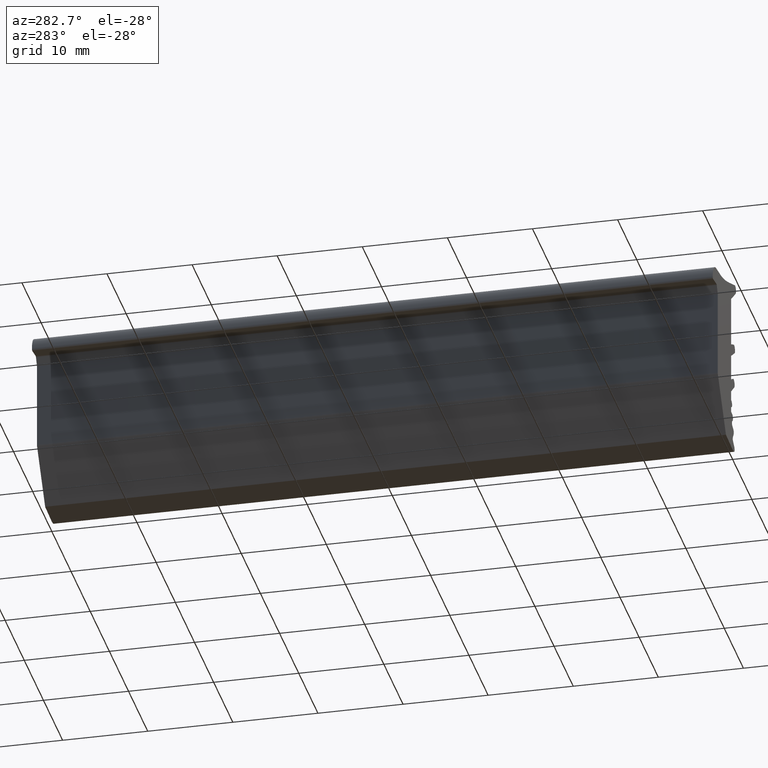
[diagram: clean part render]
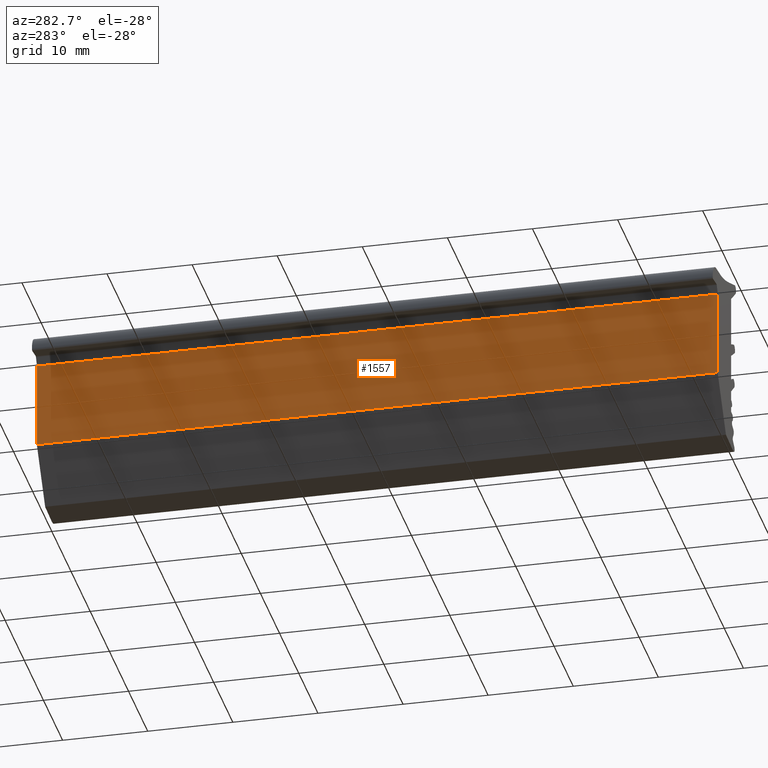
[diagram: same view with one face highlighted and labeled with its STEP entity id]
A machine part, auxiliary view. The second image highlights one B-rep face of the part: STEP entity #1557.
In plain terms, the highlighted planar face has unit normal (1, -0, 0).
Its self-contained STEP definition (entity closure, byte-faithful):
#68 = FACE_OUTER_BOUND ( 'NONE', #254, .T. ) ;
#229 = ORIENTED_EDGE ( 'NONE', *, *, #1974, .F. ) ;
#230 = ORIENTED_EDGE ( 'NONE', *, *, #1976, .F. ) ;
#232 = ORIENTED_EDGE ( 'NONE', *, *, #1986, .F. ) ;
#233 = ORIENTED_EDGE ( 'NONE', *, *, #2028, .F. ) ;
#254 = EDGE_LOOP ( 'NONE', ( #229, #230, #232, #233 ) ) ;
#414 = DIRECTION ( 'NONE',  ( -0.0000000000000000000, -1.000000000000000000, -0.0000000000000000000 ) ) ;
#415 = CARTESIAN_POINT ( 'NONE',  ( -7.773604013714980000, 80.00200000000001000, 16.17985906082330100 ) ) ;
#536 = DIRECTION ( 'NONE',  ( 0.0000000000000000000, 0.0000000000000000000, -1.000000000000000000 ) ) ;
#543 = CARTESIAN_POINT ( 'NONE',  ( -7.773604013714980000, 0.0000000000000000000, 11.08681303858249800 ) ) ;
#827 = DIRECTION ( 'NONE',  ( 0.0000000000000000000, 1.000000000000000000, 0.0000000000000000000 ) ) ;
#908 = DIRECTION ( 'NONE',  ( -0.0000000000000000000, -0.0000000000000000000, 1.000000000000000000 ) ) ;
#909 = CARTESIAN_POINT ( 'NONE',  ( -7.773604013714980000, 80.00000000000999000, 11.08681303858249800 ) ) ;
#947 = CARTESIAN_POINT ( 'NONE',  ( -7.773604013714980000, 80.00000000000999000, 5.993767016346730300 ) ) ;
#949 = CARTESIAN_POINT ( 'NONE',  ( -7.773604013713898200, 80.00000000000500200, 16.17985906082437400 ) ) ;
#952 = CARTESIAN_POINT ( 'NONE',  ( -7.773604013714980000, 80.00200000000001000, 5.993767016351730700 ) ) ;
#954 = CARTESIAN_POINT ( 'NONE',  ( -7.773604013714980000, 0.0000000000000000000, 5.993767016346730300 ) ) ;
#1073 = CARTESIAN_POINT ( 'NONE',  ( -7.773604013714980000, 80.00200000000001000, 11.08681303858249800 ) ) ;
#1161 = VERTEX_POINT ( 'NONE', #1211 ) ;
#1169 = VERTEX_POINT ( 'NONE', #949 ) ;
#1171 = VERTEX_POINT ( 'NONE', #947 ) ;
#1185 = VERTEX_POINT ( 'NONE', #954 ) ;
#1211 = CARTESIAN_POINT ( 'NONE',  ( -7.773604013713874200, 0.0000000000000000000, 16.17985906082433400 ) ) ;
#1327 = DIRECTION ( 'NONE',  ( 0.0000000000000000000, 0.0000000000000000000, -1.000000000000000000 ) ) ;
#1328 = DIRECTION ( 'NONE',  ( 1.000000000000000000, -0.0000000000000000000, 0.0000000000000000000 ) ) ;
#1340 = PLANE ( 'NONE',  #1911 ) ;
#1360 = VECTOR ( 'NONE', #536, 1000.000000000000000 ) ;
#1380 = LINE ( 'NONE', #543, #1360 ) ;
#1399 = LINE ( 'NONE', #415, #1554 ) ;
#1410 = VECTOR ( 'NONE', #827, 1000.000000000000000 ) ;
#1421 = LINE ( 'NONE', #952, #1410 ) ;
#1427 = VECTOR ( 'NONE', #908, 1000.000000000000000 ) ;
#1430 = LINE ( 'NONE', #909, #1427 ) ;
#1554 = VECTOR ( 'NONE', #414, 1000.000000000000000 ) ;
#1557 = ADVANCED_FACE ( 'NONE', ( #68 ), #1340, .F. ) ;
#1911 = AXIS2_PLACEMENT_3D ( 'NONE', #1073, #1328, #1327 ) ;
#1974 = EDGE_CURVE ( 'NONE', #1171, #1169, #1430, .T. ) ;
#1976 = EDGE_CURVE ( 'NONE', #1185, #1171, #1421, .T. ) ;
#1986 = EDGE_CURVE ( 'NONE', #1161, #1185, #1380, .T. ) ;
#2028 = EDGE_CURVE ( 'NONE', #1169, #1161, #1399, .T. ) ;